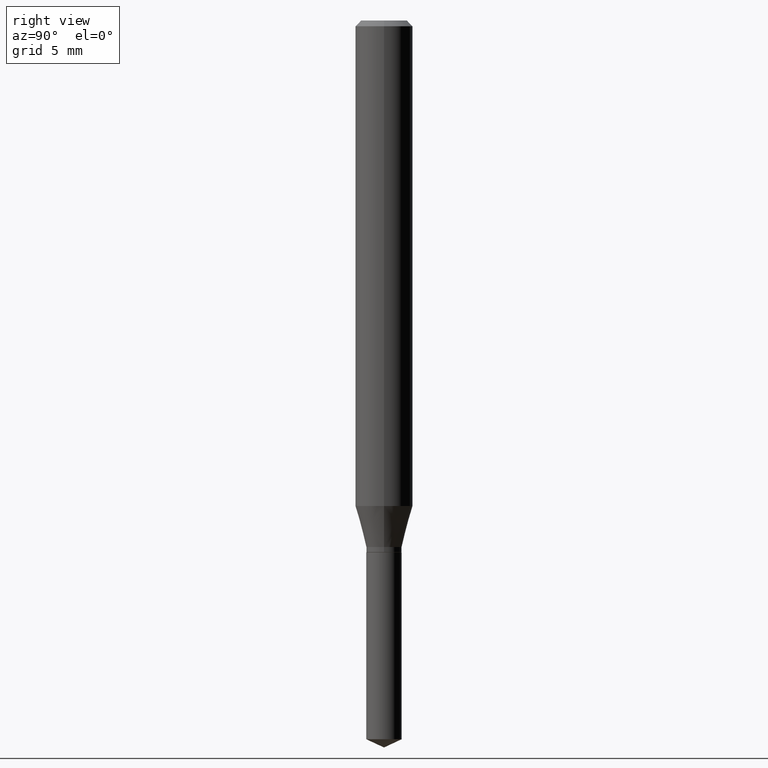
[diagram: clean part render]
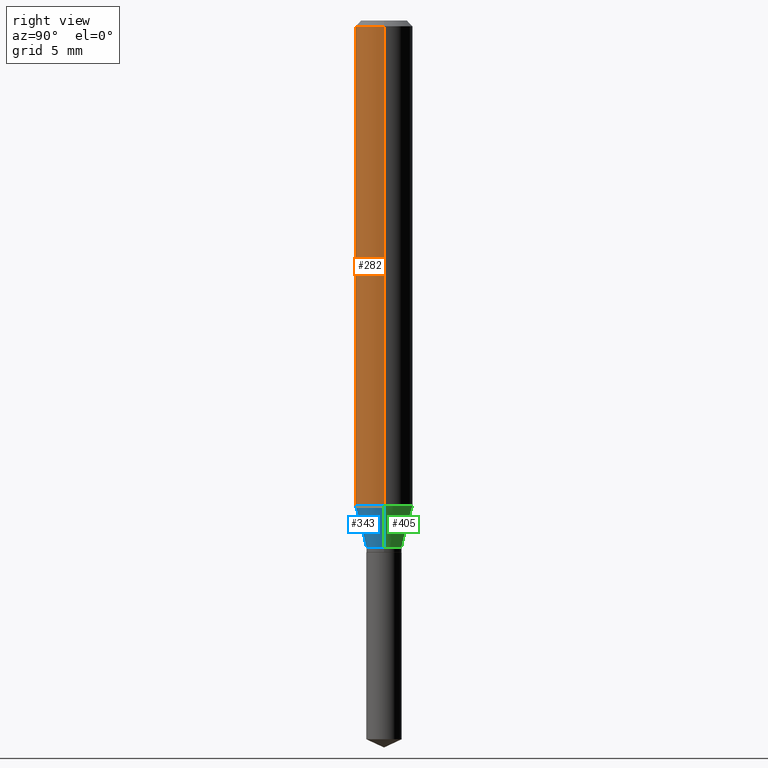
[diagram: same view with three faces highlighted in distinct colors, each labeled with its STEP entity id]
A machine part, right view with three faces highlighted in distinct colors.
Their STEP definitions:

[orange] entity #282 — the highlighted cylindrical surface (edge-blend (fillet) strip) has radius 1.4999 mm, axis along (-0, 0, 1).
#19 = LINE ( 'NONE', #92, #81 ) ;
#33 = VERTEX_POINT ( 'NONE', #453 ) ;
#44 = DIRECTION ( 'NONE',  ( -2.445468806185136597E-29, 3.491481338843145583E-15, 1.000000000000000000 ) ) ;
#69 = VERTEX_POINT ( 'NONE', #356 ) ;
#74 = DIRECTION ( 'NONE',  ( -2.445468806185136597E-29, 3.491481338843145583E-15, 1.000000000000000000 ) ) ;
#81 = VECTOR ( 'NONE', #398, 39.37007874015748143 ) ;
#91 = CARTESIAN_POINT ( 'NONE',  ( 0.05905000000000011628, -3.900574887644841668E-15, -0.9990690492085645413 ) ) ;
#92 = CARTESIAN_POINT ( 'NONE',  ( 0.05905000000000006771, -4.123439461173745257E-16, 2.879382386107503723E-30 ) ) ;
#124 = DIRECTION ( 'NONE',  ( 1.000000000000000000, -6.982962677686265133E-15, 0.000000000000000000 ) ) ;
#135 = DIRECTION ( 'NONE',  ( -2.445468806185136597E-29, 3.491481338843145583E-15, 1.000000000000000000 ) ) ;
#138 = CARTESIAN_POINT ( 'NONE',  ( 0.000000000000000000, 0.000000000000000000, 0.000000000000000000 ) ) ;
#177 = FACE_OUTER_BOUND ( 'NONE', #274, .T. ) ;
#203 = LINE ( 'NONE', #442, #214 ) ;
#209 = DIRECTION ( 'NONE',  ( -2.445468806185136877E-29, 3.491481338843145188E-15, 1.000000000000000000 ) ) ;
#211 = AXIS2_PLACEMENT_3D ( 'NONE', #381, #44, #124 ) ;
#214 = VECTOR ( 'NONE', #209, 39.37007874015748143 ) ;
#219 = EDGE_CURVE ( 'NONE', #33, #455, #412, .T. ) ;
#234 = CARTESIAN_POINT ( 'NONE',  ( 2.888098660104663766E-31, -4.123439461173779647E-17, -0.01181000000000007044 ) ) ;
#237 = EDGE_CURVE ( 'NONE', #69, #308, #470, .T. ) ;
#245 = DIRECTION ( 'NONE',  ( 1.000000000000000000, -6.982962677686266711E-15, 4.876176775795936353E-29 ) ) ;
#264 = EDGE_CURVE ( 'NONE', #69, #33, #203, .T. ) ;
#265 = AXIS2_PLACEMENT_3D ( 'NONE', #234, #74, #384 ) ;
#267 = ORIENTED_EDGE ( 'NONE', *, *, #237, .T. ) ;
#274 = EDGE_LOOP ( 'NONE', ( #414, #267, #383, #446 ) ) ;
#282 = ADVANCED_FACE ( 'NONE', ( #177 ), #284, .T. ) ;
#284 = CYLINDRICAL_SURFACE ( 'NONE', #369, 0.05905000000000006771 ) ;
#308 = VERTEX_POINT ( 'NONE', #91 ) ;
#341 = EDGE_CURVE ( 'NONE', #308, #455, #19, .T. ) ;
#356 = CARTESIAN_POINT ( 'NONE',  ( -0.05905000000000011628, -3.068655456061127255E-15, -0.9990690492085645413 ) ) ;
#369 = AXIS2_PLACEMENT_3D ( 'NONE', #138, #135, #245 ) ;
#381 = CARTESIAN_POINT ( 'NONE',  ( 2.443192195064587800E-29, -3.488230941527467537E-15, -0.9990690492085645413 ) ) ;
#383 = ORIENTED_EDGE ( 'NONE', *, *, #341, .T. ) ;
#384 = DIRECTION ( 'NONE',  ( 1.000000000000000000, -6.982962677686266711E-15, 0.000000000000000000 ) ) ;
#398 = DIRECTION ( 'NONE',  ( -2.445468806185136877E-29, 3.491481338843145188E-15, 1.000000000000000000 ) ) ;
#412 = CIRCLE ( 'NONE', #265, 0.05904999999999999832 ) ;
#414 = ORIENTED_EDGE ( 'NONE', *, *, #264, .F. ) ;
#442 = CARTESIAN_POINT ( 'NONE',  ( -0.05905000000000006771, 4.195754854663396409E-16, -2.904631170795525045E-30 ) ) ;
#446 = ORIENTED_EDGE ( 'NONE', *, *, #219, .F. ) ;
#449 = CARTESIAN_POINT ( 'NONE',  ( 0.05904999999999999832, -4.535783407291118600E-16, -0.01181000000000007044 ) ) ;
#453 = CARTESIAN_POINT ( 'NONE',  ( -0.05904999999999999832, -1.345157182603262351E-15, -0.01181000000000007044 ) ) ;
#455 = VERTEX_POINT ( 'NONE', #449 ) ;
#470 = CIRCLE ( 'NONE', #211, 0.05905000000000013016 ) ;

[blue] entity #343 — the highlighted conical surface has half-angle 15 deg.
#27 = EDGE_CURVE ( 'NONE', #270, #308, #448, .T. ) ;
#40 = AXIS2_PLACEMENT_3D ( 'NONE', #359, #215, #143 ) ;
#44 = DIRECTION ( 'NONE',  ( -2.445468806185136597E-29, 3.491481338843145583E-15, 1.000000000000000000 ) ) ;
#66 = CARTESIAN_POINT ( 'NONE',  ( 0.03639999999999998792, -4.037549020238212015E-15, -1.083599999999999897 ) ) ;
#69 = VERTEX_POINT ( 'NONE', #356 ) ;
#75 = VECTOR ( 'NONE', #438, 39.37007874015747433 ) ;
#80 = DIRECTION ( 'NONE',  ( -2.445468806185136597E-29, 3.491481338843145583E-15, 1.000000000000000000 ) ) ;
#86 = CARTESIAN_POINT ( 'NONE',  ( 2.649909998382213991E-29, -3.783369178770431629E-15, -1.083599999999999897 ) ) ;
#90 = CARTESIAN_POINT ( 'NONE',  ( -0.03639999999999998792, -3.542887325915740068E-15, -1.083599999999999897 ) ) ;
#91 = CARTESIAN_POINT ( 'NONE',  ( 0.05905000000000011628, -3.900574887644841668E-15, -0.9990690492085645413 ) ) ;
#100 = EDGE_CURVE ( 'NONE', #111, #270, #247, .T. ) ;
#106 = DIRECTION ( 'NONE',  ( 0.2588190451025214611, 1.565188264969621573E-15, 0.9659258262890682012 ) ) ;
#111 = VERTEX_POINT ( 'NONE', #90 ) ;
#124 = DIRECTION ( 'NONE',  ( 1.000000000000000000, -6.982962677686265133E-15, 0.000000000000000000 ) ) ;
#130 = CARTESIAN_POINT ( 'NONE',  ( -0.03639999999999998792, -3.524731622953755642E-15, -1.083599999999999897 ) ) ;
#143 = DIRECTION ( 'NONE',  ( 1.000000000000000000, -6.982962677686262766E-15, 0.000000000000000000 ) ) ;
#175 = ORIENTED_EDGE ( 'NONE', *, *, #237, .F. ) ;
#181 = CARTESIAN_POINT ( 'NONE',  ( 0.03639999999999998792, -4.037549020238212015E-15, -1.083599999999999897 ) ) ;
#183 = CONICAL_SURFACE ( 'NONE', #40, 0.03639999999999998792, 0.2617993877991501295 ) ;
#211 = AXIS2_PLACEMENT_3D ( 'NONE', #381, #44, #124 ) ;
#215 = DIRECTION ( 'NONE',  ( -2.445468806185136597E-29, 3.491481338843145583E-15, 1.000000000000000000 ) ) ;
#224 = ORIENTED_EDGE ( 'NONE', *, *, #27, .T. ) ;
#231 = ORIENTED_EDGE ( 'NONE', *, *, #296, .F. ) ;
#237 = EDGE_CURVE ( 'NONE', #69, #308, #470, .T. ) ;
#247 = CIRCLE ( 'NONE', #375, 0.03639999999999998792 ) ;
#259 = VECTOR ( 'NONE', #106, 39.37007874015747433 ) ;
#270 = VERTEX_POINT ( 'NONE', #181 ) ;
#289 = LINE ( 'NONE', #130, #75 ) ;
#291 = FACE_OUTER_BOUND ( 'NONE', #373, .T. ) ;
#296 = EDGE_CURVE ( 'NONE', #111, #69, #289, .T. ) ;
#308 = VERTEX_POINT ( 'NONE', #91 ) ;
#343 = ADVANCED_FACE ( 'NONE', ( #291 ), #183, .T. ) ;
#356 = CARTESIAN_POINT ( 'NONE',  ( -0.05905000000000011628, -3.068655456061127255E-15, -0.9990690492085645413 ) ) ;
#359 = CARTESIAN_POINT ( 'NONE',  ( 2.649909998382213991E-29, -3.783369178770431629E-15, -1.083599999999999897 ) ) ;
#373 = EDGE_LOOP ( 'NONE', ( #231, #463, #224, #175 ) ) ;
#375 = AXIS2_PLACEMENT_3D ( 'NONE', #86, #80, #433 ) ;
#381 = CARTESIAN_POINT ( 'NONE',  ( 2.443192195064587800E-29, -3.488230941527467537E-15, -0.9990690492085645413 ) ) ;
#433 = DIRECTION ( 'NONE',  ( 1.000000000000000000, -6.982962677686262766E-15, 0.000000000000000000 ) ) ;
#438 = DIRECTION ( 'NONE',  ( -0.2588190451025214611, 5.211531920934551042E-15, 0.9659258262890682012 ) ) ;
#448 = LINE ( 'NONE', #66, #259 ) ;
#463 = ORIENTED_EDGE ( 'NONE', *, *, #100, .T. ) ;
#470 = CIRCLE ( 'NONE', #211, 0.05905000000000013016 ) ;

[green] entity #405 — the highlighted conical surface has half-angle 15 deg.
#16 = CONICAL_SURFACE ( 'NONE', #326, 0.03639999999999998792, 0.2617993877991501295 ) ;
#24 = CARTESIAN_POINT ( 'NONE',  ( 2.649909998382213991E-29, -3.783369178770431629E-15, -1.083599999999999897 ) ) ;
#27 = EDGE_CURVE ( 'NONE', #270, #308, #448, .T. ) ;
#34 = DIRECTION ( 'NONE',  ( 1.000000000000000000, -6.982962677686262766E-15, 0.000000000000000000 ) ) ;
#35 = ORIENTED_EDGE ( 'NONE', *, *, #483, .F. ) ;
#56 = DIRECTION ( 'NONE',  ( -2.445468806185136597E-29, 3.491481338843145583E-15, 1.000000000000000000 ) ) ;
#62 = EDGE_CURVE ( 'NONE', #270, #111, #415, .T. ) ;
#66 = CARTESIAN_POINT ( 'NONE',  ( 0.03639999999999998792, -4.037549020238212015E-15, -1.083599999999999897 ) ) ;
#69 = VERTEX_POINT ( 'NONE', #356 ) ;
#75 = VECTOR ( 'NONE', #438, 39.37007874015747433 ) ;
#90 = CARTESIAN_POINT ( 'NONE',  ( -0.03639999999999998792, -3.542887325915740068E-15, -1.083599999999999897 ) ) ;
#91 = CARTESIAN_POINT ( 'NONE',  ( 0.05905000000000011628, -3.900574887644841668E-15, -0.9990690492085645413 ) ) ;
#106 = DIRECTION ( 'NONE',  ( 0.2588190451025214611, 1.565188264969621573E-15, 0.9659258262890682012 ) ) ;
#111 = VERTEX_POINT ( 'NONE', #90 ) ;
#121 = ORIENTED_EDGE ( 'NONE', *, *, #62, .T. ) ;
#130 = CARTESIAN_POINT ( 'NONE',  ( -0.03639999999999998792, -3.524731622953755642E-15, -1.083599999999999897 ) ) ;
#154 = ORIENTED_EDGE ( 'NONE', *, *, #296, .T. ) ;
#181 = CARTESIAN_POINT ( 'NONE',  ( 0.03639999999999998792, -4.037549020238212015E-15, -1.083599999999999897 ) ) ;
#186 = DIRECTION ( 'NONE',  ( -2.445468806185136597E-29, 3.491481338843145583E-15, 1.000000000000000000 ) ) ;
#208 = DIRECTION ( 'NONE',  ( 1.000000000000000000, -6.982962677686262766E-15, 0.000000000000000000 ) ) ;
#212 = DIRECTION ( 'NONE',  ( 1.000000000000000000, -6.982962677686265133E-15, 0.000000000000000000 ) ) ;
#259 = VECTOR ( 'NONE', #106, 39.37007874015747433 ) ;
#270 = VERTEX_POINT ( 'NONE', #181 ) ;
#283 = CARTESIAN_POINT ( 'NONE',  ( 2.649909998382213991E-29, -3.783369178770431629E-15, -1.083599999999999897 ) ) ;
#289 = LINE ( 'NONE', #130, #75 ) ;
#296 = EDGE_CURVE ( 'NONE', #111, #69, #289, .T. ) ;
#308 = VERTEX_POINT ( 'NONE', #91 ) ;
#326 = AXIS2_PLACEMENT_3D ( 'NONE', #24, #186, #34 ) ;
#331 = FACE_OUTER_BOUND ( 'NONE', #406, .T. ) ;
#340 = ORIENTED_EDGE ( 'NONE', *, *, #27, .F. ) ;
#356 = CARTESIAN_POINT ( 'NONE',  ( -0.05905000000000011628, -3.068655456061127255E-15, -0.9990690492085645413 ) ) ;
#394 = DIRECTION ( 'NONE',  ( -2.445468806185136597E-29, 3.491481338843145583E-15, 1.000000000000000000 ) ) ;
#396 = CIRCLE ( 'NONE', #444, 0.05905000000000013016 ) ;
#405 = ADVANCED_FACE ( 'NONE', ( #331 ), #16, .T. ) ;
#406 = EDGE_LOOP ( 'NONE', ( #121, #154, #35, #340 ) ) ;
#415 = CIRCLE ( 'NONE', #467, 0.03639999999999998792 ) ;
#435 = CARTESIAN_POINT ( 'NONE',  ( 2.443192195064587800E-29, -3.488230941527467537E-15, -0.9990690492085645413 ) ) ;
#438 = DIRECTION ( 'NONE',  ( -0.2588190451025214611, 5.211531920934551042E-15, 0.9659258262890682012 ) ) ;
#444 = AXIS2_PLACEMENT_3D ( 'NONE', #435, #394, #212 ) ;
#448 = LINE ( 'NONE', #66, #259 ) ;
#467 = AXIS2_PLACEMENT_3D ( 'NONE', #283, #56, #208 ) ;
#483 = EDGE_CURVE ( 'NONE', #308, #69, #396, .T. ) ;